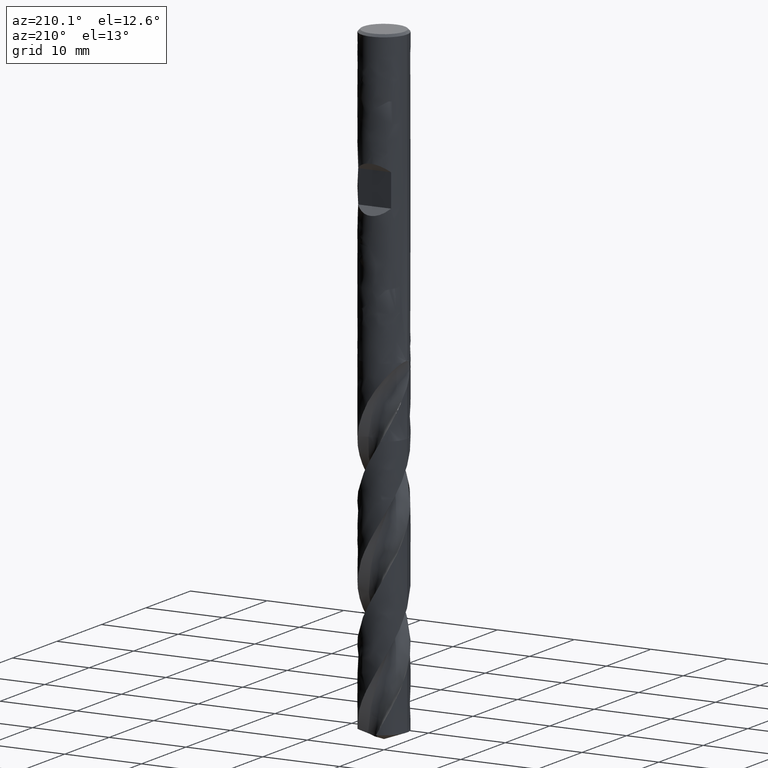
[diagram: clean part render]
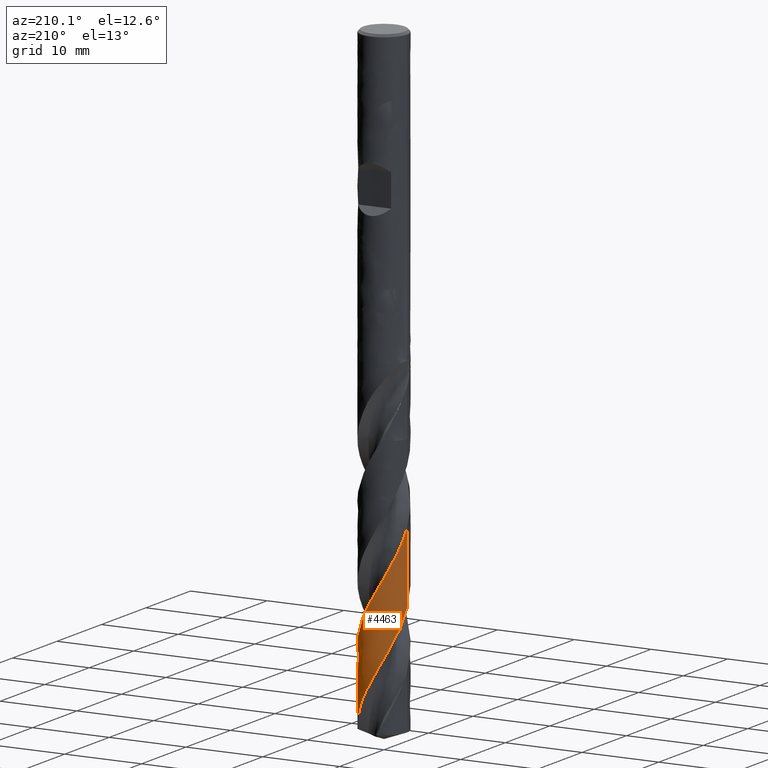
[diagram: same view with one face highlighted and labeled with its STEP entity id]
A machine part, auxiliary view. The second image highlights one B-rep face of the part: STEP entity #4463.
In plain terms, the highlighted face is a freeform B-spline surface patch.
Its self-contained STEP definition (entity closure, byte-faithful):
#1960 = VERTEX_POINT('', #1961);
#1961 = CARTESIAN_POINT('', (-3., 4.26020754489508E-15, -66.5744691099704));
#2082 = EDGE_CURVE('', #2083, #1960, #2085, .T.);
#2083 = VERTEX_POINT('', #2084);
#2084 = CARTESIAN_POINT('', (2.73960958333734, 1.22251352993995, -80.9080892972014));
#2085 = B_SPLINE_CURVE_WITH_KNOTS('', 3, (#2086, #2087, #2088, #2089, #2090, #2091, #2092, #2093, #2094, #2095, #2096, #2097, #2098, #2099, #2100, #2101, #2102, #2103, #2104, #2105, #2106, #2107, #2108, #2109, #2110, #2111, #2112, #2113, #2114, #2115, #2116, #2117, #2118, #2119, #2120, #2121, #2122, #2123, #2124, #2125, #2126, #2127, #2128, #2129, #2130, #2131, #2132, #2133, #2134, #2135, #2136, #2137, #2138, #2139, #2140, #2141, #2142, #2143, #2144, #2145, #2146, #2147, #2148, #2149, #2150, #2151, #2152, #2153, #2154, #2155, #2156, #2157, #2158, #2159, #2160, #2161, #2162, #2163, #2164, #2165, #2166, #2167, #2168, #2169, #2170), .UNSPECIFIED., .F., .U., (4, 3, 3, 3, 3, 3, 3, 3, 3, 3, 3, 3, 3, 3, 3, 3, 3, 3, 3, 3, 3, 3, 3, 3, 3, 3, 3, 3, 4), (0., 0.665718253699947, 1.33118446681703, 1.99640345409991, 2.66137848778931, 3.32611136859525, 3.99060241566731, 4.65485050421191, 5.31885303285901, 5.98260586578358, 6.64610323248585, 6.94133426738573, 6.98025186904817, 7.01918081919815, 7.6859352254579, 8.35239945581531, 9.01858618202882, 9.68450566736711, 10.3501660677568, 11.015573659672, 11.6807330088823, 12.345647089974, 13.0103173633935, 13.6747438142559, 14.3389249550699, 15.0028577926278, 15.6665377574488, 16.3299585921512, 16.4943967780624), .UNSPECIFIED.);
#2086 = CARTESIAN_POINT('', (2.73960958333733, 1.22251352993995, -80.9080892972014));
#2087 = CARTESIAN_POINT('', (2.69492373279667, 1.32265294057438, -80.7151707040929));
#2088 = CARTESIAN_POINT('', (2.64471975730666, 1.4203821209483, -80.5221856393616));
#2089 = CARTESIAN_POINT('', (2.5893338482533, 1.51504132692471, -80.3292754370136));
#2090 = CARTESIAN_POINT('', (2.53396890827615, 1.60966469497522, -80.1364382703673));
#2091 = CARTESIAN_POINT('', (2.47338508514048, 1.70129020515645, -79.9435349676991));
#2092 = CARTESIAN_POINT('', (2.40798888893388, 1.78929860860925, -79.750706314114));
#2093 = CARTESIAN_POINT('', (2.3426169879189, 1.87727431626092, -79.5579492978619));
#2094 = CARTESIAN_POINT('', (2.27238791089748, 1.96170070978893, -79.3651261730035));
#2095 = CARTESIAN_POINT('', (2.19777313055357, 2.04200716615217, -79.1723776697301));
#2096 = CARTESIAN_POINT('', (2.12318571344513, 2.12228417199011, -78.9796998524878));
#2097 = CARTESIAN_POINT('', (2.04416068857027, 2.19850359098855, -78.786955930269));
#2098 = CARTESIAN_POINT('', (1.96122867508954, 2.27015023379655, -78.5942866243876));
#2099 = CARTESIAN_POINT('', (1.87832686157901, 2.34177078623985, -78.4016874796785));
#2100 = CARTESIAN_POINT('', (1.79145977574088, 2.4088747091813, -78.2090222151951));
#2101 = CARTESIAN_POINT('', (1.70121066074969, 2.47100835444796, -78.0164315816548));
#2102 = CARTESIAN_POINT('', (1.61099437891763, 2.53311939512884, -77.8239110137203));
#2103 = CARTESIAN_POINT('', (1.51733221483639, 2.59030943789172, -77.6313242883388));
#2104 = CARTESIAN_POINT('', (1.42085287676902, 2.6421917232815, -77.4388122270317));
#2105 = CARTESIAN_POINT('', (1.32440881453871, 2.69405503889928, -77.2463705541026));
#2106 = CARTESIAN_POINT('', (1.2250790107514, 2.74065246785616, -77.053862677712));
#2107 = CARTESIAN_POINT('', (1.12352997705121, 2.78166863423152, -76.861429504957));
#2108 = CARTESIAN_POINT('', (1.02201848409932, 2.82266963770948, -76.6690674710897));
#2109 = CARTESIAN_POINT('', (0.918215359650358, 2.85812342029524, -76.4766391842581));
#2110 = CARTESIAN_POINT('', (0.81281683092567, 2.88778960441449, -76.2842856419888));
#2111 = CARTESIAN_POINT('', (0.707457936932247, 2.9174446326737, -76.0920044335655));
#2112 = CARTESIAN_POINT('', (0.600428298349293, 2.94133796719729, -75.8996569260558));
#2113 = CARTESIAN_POINT('', (0.492445451186149, 2.95930692521195, -75.707384198859));
#2114 = CARTESIAN_POINT('', (0.384504164629108, 2.97726896730612, -75.5151854738885));
#2115 = CARTESIAN_POINT('', (0.275532286146507, 2.98932419973188, -75.3229204123153));
#2116 = CARTESIAN_POINT('', (0.166260033166432, 2.99538939060876, -75.1307301566613));
#2117 = CARTESIAN_POINT('', (0.117638046174245, 2.99808816933692, -75.0452128194088));
#2118 = CARTESIAN_POINT('', (0.0689452198782487, 2.99960300952439, -74.9596901773799));
#2119 = CARTESIAN_POINT('', (0.020246656564971, 2.99993167803835, -74.8741744600837));
#2120 = CARTESIAN_POINT('', (0.0138271712652563, 2.99997500339644, -74.8629017067882));
#2121 = CARTESIAN_POINT('', (0.00740751627175737, 2.99999772349385, -74.8516289521009));
#2122 = CARTESIAN_POINT('', (0.000987838626305834, 2.99999983736248, -74.8403562252825));
#2123 = CARTESIAN_POINT('', (-0.00543371101609914, 3.00000195184752, -74.8290802113037));
#2124 = CARTESIAN_POINT('', (-0.0118552995318926, 2.99998344808904, -74.8178041967459));
#2125 = CARTESIAN_POINT('', (-0.0182767794724028, 2.99994432603876, -74.8065282107415));
#2126 = CARTESIAN_POINT('', (-0.12826048128169, 2.99927426431592, -74.6133991043992));
#2127 = CARTESIAN_POINT('', (-0.238255794849844, 2.99254646296856, -74.4202030606089));
#2128 = CARTESIAN_POINT('', (-0.347515987472609, 2.97980412753117, -74.2270824802488));
#2129 = CARTESIAN_POINT('', (-0.456728629341024, 2.96706733764195, -74.0340459472353));
#2130 = CARTESIAN_POINT('', (-0.565288121440559, 2.94831176423289, -73.8409425142161));
#2131 = CARTESIAN_POINT('', (-0.67245769830898, 2.92366219731097, -73.6479145092976));
#2132 = CARTESIAN_POINT('', (-0.779582651624736, 2.89902289404112, -73.4549668778917));
#2133 = CARTESIAN_POINT('', (-0.885398479766338, 2.86847619363919, -73.2619523510439));
#2134 = CARTESIAN_POINT('', (-0.989187307043416, 2.83222676909605, -73.0690132469038));
#2135 = CARTESIAN_POINT('', (-1.09293449942153, 2.79599188601338, -72.8761515403055));
#2136 = CARTESIAN_POINT('', (-1.194733226916, 2.75403199889918, -72.6832229199052));
#2137 = CARTESIAN_POINT('', (-1.29389314724867, 2.70662899627987, -72.490369737166));
#2138 = CARTESIAN_POINT('', (-1.39301448807821, 2.65924443643745, -72.2975915865561));
#2139 = CARTESIAN_POINT('', (-1.48957230962698, 2.60638599506861, -72.1047464895481));
#2140 = CARTESIAN_POINT('', (-1.58291206855566, 2.5484091867714, -71.9119768571505));
#2141 = CARTESIAN_POINT('', (-1.67621637835435, 2.49045439725202, -71.719280435953));
#2142 = CARTESIAN_POINT('', (-1.76637375535139, 2.427342474421, -71.5265170290619));
#2143 = CARTESIAN_POINT('', (-1.8527732496832, 2.35949810028708, -71.333829118504));
#2144 = CARTESIAN_POINT('', (-1.93914051107323, 2.29167903676151, -71.1412130937626));
#2145 = CARTESIAN_POINT('', (-2.02181603843679, 2.21908132137823, -70.9485300438147));
#2146 = CARTESIAN_POINT('', (-2.10023971293051, 2.14219353659504, -70.7559225205071));
#2147 = CARTESIAN_POINT('', (-2.17863446980155, 2.0653341030969, -70.5633860185042));
#2148 = CARTESIAN_POINT('', (-2.25283780593122, 1.98413159848875, -70.370782457074));
#2149 = CARTESIAN_POINT('', (-2.32234703536577, 1.89913249862348, -70.1782544459392));
#2150 = CARTESIAN_POINT('', (-2.39183077747208, 1.81416456584171, -69.9857970301002));
#2151 = CARTESIAN_POINT('', (-2.45667448057185, 1.72534092289681, -69.7932725305179));
#2152 = CARTESIAN_POINT('', (-2.51643878682484, 1.63325926667004, -69.6008235938767));
#2153 = CARTESIAN_POINT('', (-2.57618116959704, 1.54121138897342, -69.4084452537307));
#2154 = CARTESIAN_POINT('', (-2.63089129703321, 1.44584100260547, -69.2159998192118));
#2155 = CARTESIAN_POINT('', (-2.68019826507455, 1.34778976843253, -69.0236299457264));
#2156 = CARTESIAN_POINT('', (-2.72948702870108, 1.24977473533644, -68.8313310962992));
#2157 = CARTESIAN_POINT('', (-2.77341237114686, 1.14900974739939, -68.6389651585678));
#2158 = CARTESIAN_POINT('', (-2.81167614371217, 1.0461726735487, -68.4466747626179));
#2159 = CARTESIAN_POINT('', (-2.84992561141585, 0.943374045204371, -68.2544562541826));
#2160 = CARTESIAN_POINT('', (-2.88254545011789, 0.838430409929519, -68.0621706825098));
#2161 = CARTESIAN_POINT('', (-2.90931369809898, 0.732047680178155, -67.8699606139263));
#2162 = CARTESIAN_POINT('', (-2.93607175083178, 0.625705468519153, -67.6778237525761));
#2163 = CARTESIAN_POINT('', (-2.95700204423757, 0.517848247608757, -67.4856198736976));
#2164 = CARTESIAN_POINT('', (-2.9719613283196, 0.409201494345428, -67.2934914383186));
#2165 = CARTESIAN_POINT('', (-2.98691477163309, 0.300597161597333, -67.1014380184093));
#2166 = CARTESIAN_POINT('', (-2.9959126966446, 0.19112522512752, -66.9093176483662));
#2167 = CARTESIAN_POINT('', (-2.99889215522249, 0.0815220298139735, -66.7172726404615));
#2168 = CARTESIAN_POINT('', (-2.99963065594167, 0.054355336118697, -66.6696715838451));
#2169 = CARTESIAN_POINT('', (-3., 0.0271775667754056, -66.6220696885888));
#2170 = CARTESIAN_POINT('', (-3., 4.12534465309915E-15, -66.5744691099704));
#2427 = VERTEX_POINT('', #2428);
#2428 = CARTESIAN_POINT('', (-3., 3.68936415163167E-15, -57.2518890213953));
#2483 = EDGE_CURVE('', #2427, #1960, #2484, .T.);
#2484 = LINE('', #2485, #2486);
#2485 = CARTESIAN_POINT('', (-3., 3.68936415163167E-15, -57.2518890213953));
#2486 = VECTOR('', #2487, 9.32258008857514);
#2487 = DIRECTION('', (0., 5.70843393263419E-16, -9.32258008857514));
#2581 = VERTEX_POINT('', #2582);
#2582 = CARTESIAN_POINT('', (0.651846533794723, -2.92832650098649, -80.9080892972014));
#2691 = EDGE_CURVE('', #2692, #2581, #2694, .T.);
#2692 = VERTEX_POINT('', #2693);
#2693 = CARTESIAN_POINT('', (1.1436609316249, -2.77345266292303, -79.9964470738604));
#2694 = B_SPLINE_CURVE_WITH_KNOTS('', 3, (#2695, #2696, #2697, #2698, #2699, #2700, #2701), .UNSPECIFIED., .F., .U., (4, 3, 4), (0., 0.664031708177451, 1.04757633619898), .UNSPECIFIED.);
#2695 = CARTESIAN_POINT('', (1.14366093162495, -2.77345266292301, -79.9964470738603));
#2696 = CARTESIAN_POINT('', (1.04281438226776, -2.8150377457084, -80.1890445236003));
#2697 = CARTESIAN_POINT('', (0.939668681754847, -2.85112585788506, -80.3817166546056));
#2698 = CARTESIAN_POINT('', (0.834909332831994, -2.8814798985848, -80.5743230779158));
#2699 = CARTESIAN_POINT('', (0.774400346559826, -2.89901238853334, -80.6855725228946));
#2700 = CARTESIAN_POINT('', (0.713334375882049, -2.9146392851922, -80.7968370161874));
#2701 = CARTESIAN_POINT('', (0.651846533794711, -2.92832650098649, -80.9080892972014));
#4257 = EDGE_CURVE('', #2083, #2581, #4258, .T.);
#4258 = CIRCLE('', #4259, 3.);
#4259 = AXIS2_PLACEMENT_3D('', #4260, #4261, #4262);
#4260 = CARTESIAN_POINT('', (3.03356746049892E-31, 4.9541916291473E-15, -80.9080892972014));
#4261 = DIRECTION('', (3.74939945665464E-33, 6.12323399573677E-17, -1.));
#4262 = DIRECTION('', (-1., 6.12323399573677E-17, 0.));
#4463 = ADVANCED_FACE('', (#4464), #4609, .T.);
#4464 = FACE_OUTER_BOUND('', #4465, .T.);
#4465 = EDGE_LOOP('', (#4466, #4467, #4468, #4469, #4470));
#4466 = ORIENTED_EDGE('', *, *, #2691, .T.);
#4467 = ORIENTED_EDGE('', *, *, #4257, .F.);
#4468 = ORIENTED_EDGE('', *, *, #2082, .T.);
#4469 = ORIENTED_EDGE('', *, *, #2483, .F.);
#4470 = ORIENTED_EDGE('', *, *, #4471, .F.);
#4471 = EDGE_CURVE('', #2692, #2427, #4472, .T.);
#4472 = B_SPLINE_CURVE_WITH_KNOTS('', 3, (#4473, #4474, #4475, #4476, #4477, #4478, #4479, #4480, #4481, #4482, #4483, #4484, #4485, #4486, #4487, #4488, #4489, #4490, #4491, #4492, #4493, #4494, #4495, #4496, #4497, #4498, #4499, #4500, #4501, #4502, #4503, #4504, #4505, #4506, #4507, #4508, #4509, #4510, #4511, #4512, #4513, #4514, #4515, #4516, #4517, #4518, #4519, #4520, #4521, #4522, #4523, #4524, #4525, #4526, #4527, #4528, #4529, #4530, #4531, #4532, #4533, #4534, #4535, #4536, #4537, #4538, #4539, #4540, #4541, #4542, #4543, #4544, #4545, #4546, #4547, #4548, #4549, #4550, #4551, #4552, #4553, #4554, #4555, #4556, #4557, #4558, #4559, #4560, #4561, #4562, #4563, #4564, #4565, #4566, #4567, #4568, #4569, #4570, #4571, #4572, #4573, #4574, #4575, #4576, #4577, #4578, #4579, #4580, #4581, #4582, #4583, #4584, #4585, #4586, #4587, #4588, #4589, #4590, #4591, #4592, #4593, #4594, #4595, #4596, #4597, #4598, #4599, #4600, #4601, #4602, #4603, #4604, #4605, #4606, #4607, #4608), .UNSPECIFIED., .F., .U., (4, 3, 3, 3, 3, 3, 3, 3, 3, 3, 3, 3, 3, 3, 3, 3, 3, 3, 3, 3, 3, 3, 3, 3, 3, 3, 3, 3, 3, 3, 3, 3, 3, 3, 3, 3, 3, 3, 3, 3, 3, 3, 3, 3, 3, 4), (0., 0.665780280075021, 1.33130960936678, 1.99659309999321, 2.6616342496796, 3.32643506237463, 3.99099608567714, 4.65531642706631, 5.31939371376931, 5.98322407228095, 6.64680204107318, 7.08941510765467, 7.14778695724863, 7.20616898465008, 7.87291703263534, 8.53937700301148, 9.20556127112482, 9.87147983812413, 10.5371406252295, 11.2025496961436, 11.8677114213539, 12.5326285939725, 13.1973025036561, 13.8617329726958, 14.5259183562966, 15.1898555071921, 15.8535397028828, 16.5169645317812, 16.6482620929337, 16.6871796578717, 16.7261081347628, 17.3928724494436, 18.0593447078901, 18.7255375120994, 19.3914610392141, 20.05712334288, 20.7225305807945, 21.3876871826038, 22.052595968066, 22.7172582221994, 23.3816737315952, 24.0458407839424, 24.7097561308711, 25.3734149122982, 26.0368105383762, 26.1765736561718), .UNSPECIFIED.);
#4473 = CARTESIAN_POINT('', (1.1436609316249, -2.77345266292303, -79.9964470738604));
#4474 = CARTESIAN_POINT('', (1.24477303673795, -2.73175807556697, -79.8033424638687));
#4475 = CARTESIAN_POINT('', (1.3436497776149, -2.68450614986667, -79.6101747848034));
#4476 = CARTESIAN_POINT('', (1.43962888440825, -2.63200848691213, -79.4170854447075));
#4477 = CARTESIAN_POINT('', (1.53557181405315, -2.57953061176151, -79.2240688852611));
#4478 = CARTESIAN_POINT('', (1.62868676932919, -2.52177403112072, -79.0309892896951));
#4479 = CARTESIAN_POINT('', (1.71834957905626, -2.45912072175344, -78.8379879717542));
#4480 = CARTESIAN_POINT('', (1.80797926840155, -2.39649055577786, -78.6450579462183));
#4481 = CARTESIAN_POINT('', (1.89422254431619, -2.32892310617028, -78.4520649468983));
#4482 = CARTESIAN_POINT('', (1.97650065613918, -2.25686622471988, -78.2591501164522));
#4483 = CARTESIAN_POINT('', (2.05874879674653, -2.18483559122638, -78.066305558547));
#4484 = CARTESIAN_POINT('', (2.13709291471745, -2.10826774514858, -77.873398146977));
#4485 = CARTESIAN_POINT('', (2.21100644040735, -2.02767120620608, -77.680568738071));
#4486 = CARTESIAN_POINT('', (2.28489325473601, -1.94710379377656, -77.4878090151386));
#4487 = CARTESIAN_POINT('', (2.35440539356008, -1.86245306914611, -77.2949866172341));
#4488 = CARTESIAN_POINT('', (2.4190746569495, -1.7742823349469, -77.1022419984619));
#4489 = CARTESIAN_POINT('', (2.48372059455008, -1.68614340336645, -76.9095669014383));
#4490 = CARTESIAN_POINT('', (2.54357371676582, -1.59442344529579, -76.7168293569725));
#4491 = CARTESIAN_POINT('', (2.59822976952095, -1.49973399800602, -76.5241693300063));
#4492 = CARTESIAN_POINT('', (2.65286602767048, -1.40507884408668, -76.331579078098));
#4493 = CARTESIAN_POINT('', (2.70234874572362, -1.30738738769881, -76.1389266016337));
#4494 = CARTESIAN_POINT('', (2.74634257681699, -1.20731207678974, -75.9463514241826));
#4495 = CARTESIAN_POINT('', (2.79032031190043, -1.10727338040498, -75.7538467041544));
#4496 = CARTESIAN_POINT('', (2.82884543202062, -1.00477913426049, -75.5612799062813));
#4497 = CARTESIAN_POINT('', (2.86165569016516, -0.90051469224319, -75.3687902642695));
#4498 = CARTESIAN_POINT('', (2.8944537482573, -0.796289019553808, -75.1763721969374));
#4499 = CARTESIAN_POINT('', (2.92156535791987, -0.690217621423855, -74.9838921295436));
#4500 = CARTESIAN_POINT('', (2.94280460389596, -0.583010345783299, -74.7914891394991));
#4501 = CARTESIAN_POINT('', (2.96403577466538, -0.475843830577801, -74.5991593014822));
#4502 = CARTESIAN_POINT('', (2.97941471618364, -0.367463156213049, -74.4067674858717));
#4503 = CARTESIAN_POINT('', (2.9888340793877, -0.2585939788369, -74.2144527204495));
#4504 = CARTESIAN_POINT('', (2.99511688778258, -0.185977161038736, -74.0861768703223));
#4505 = CARTESIAN_POINT('', (2.99875305039551, -0.113113138995295, -73.9578838354198));
#4506 = CARTESIAN_POINT('', (2.99973038667569, -0.0402194884954666, -73.8296148595726));
#4507 = CARTESIAN_POINT('', (2.99985927786906, -0.0306062675478941, -73.8126987359173));
#4508 = CARTESIAN_POINT('', (2.99994195898127, -0.0209923057675264, -73.7957826180388));
#4509 = CARTESIAN_POINT('', (2.99997842303794, -0.0113781064669359, -73.7788665986599));
#4510 = CARTESIAN_POINT('', (3.00001489345255, -0.00176223081943621, -73.7619476297772));
#4511 = CARTESIAN_POINT('', (3.00000513094289, 0.00785393837384783, -73.7450286648982));
#4512 = CARTESIAN_POINT('', (2.99994913328055, 0.0174699092513913, -73.7281098035017));
#4513 = CARTESIAN_POINT('', (2.99930961571467, 0.12728846296483, -73.5348890759529));
#4514 = CARTESIAN_POINT('', (2.99263053919738, 0.237126217152316, -73.3416052539826));
#4515 = CARTESIAN_POINT('', (2.97995274473557, 0.346239280186061, -73.1483996995079));
#4516 = CARTESIAN_POINT('', (2.96728042788818, 0.455305199429258, -72.9552776221342));
#4517 = CARTESIAN_POINT('', (2.94860511142782, 0.563728409183809, -72.7620925059559));
#4518 = CARTESIAN_POINT('', (2.92404888663946, 0.670774260495209, -72.5689856011986));
#4519 = CARTESIAN_POINT('', (2.89950282031079, 0.777775828901794, -72.3759585812252));
#4520 = CARTESIAN_POINT('', (2.86906239378458, 0.883481002138226, -72.1828685184274));
#4521 = CARTESIAN_POINT('', (2.83292936073397, 0.987173357162551, -71.9898566667561));
#4522 = CARTESIAN_POINT('', (2.79681073899206, 1.0908243554999, -71.796921795984));
#4523 = CARTESIAN_POINT('', (2.75497715640778, 1.19254132076649, -71.6039238332338));
#4524 = CARTESIAN_POINT('', (2.70770745332852, 1.29163475765762, -71.4110041230209));
#4525 = CARTESIAN_POINT('', (2.66045604855126, 1.39068983506019, -71.2181590928438));
#4526 = CARTESIAN_POINT('', (2.60773766750184, 1.4871969284517, -71.0252508893283));
#4527 = CARTESIAN_POINT('', (2.54990472272259, 1.58050178900154, -70.8324210089348));
#4528 = CARTESIAN_POINT('', (2.49209364717294, 1.6737713667999, -70.6396640461654));
#4529 = CARTESIAN_POINT('', (2.42912916116, 1.76391005667599, -70.4468438079877));
#4530 = CARTESIAN_POINT('', (2.36143285390421, 1.85030669795627, -70.2541019815608));
#4531 = CARTESIAN_POINT('', (2.29376171070386, 1.93667122389733, -70.0614318010804));
#4532 = CARTESIAN_POINT('', (2.22131250660741, 2.01935999497189, -69.8686982326));
#4533 = CARTESIAN_POINT('', (2.14457079632668, 2.0978122174167, -69.6760431726973));
#4534 = CARTESIAN_POINT('', (2.06785730081454, 2.176235596208, -69.4834589441316));
#4535 = CARTESIAN_POINT('', (1.9867983323642, 2.2504829237625, -69.2908112134333));
#4536 = CARTESIAN_POINT('', (1.90193745636116, 2.32005041154076, -69.0982420876752));
#4537 = CARTESIAN_POINT('', (1.81710762709088, 2.38959244774105, -68.905743414197));
#4538 = CARTESIAN_POINT('', (1.72841691281692, 2.45450870380107, -68.7131811307795));
#4539 = CARTESIAN_POINT('', (1.63646026895561, 2.51435832532472, -68.5206975406295));
#4540 = CARTESIAN_POINT('', (1.54453730474424, 2.57418602658012, -68.3282844487019));
#4541 = CARTESIAN_POINT('', (1.44928417530057, 2.62899417279592, -68.1358076521864));
#4542 = CARTESIAN_POINT('', (1.35134002233879, 2.67841000297294, -67.9434096226732));
#4543 = CARTESIAN_POINT('', (1.25343199759031, 2.72780760535789, -67.7510825621443));
#4544 = CARTESIAN_POINT('', (1.15276423231832, 2.77185254193193, -67.5586917214084));
#4545 = CARTESIAN_POINT('', (1.05001235460016, 2.81024448316999, -67.3663797012001));
#4546 = CARTESIAN_POINT('', (0.947298879378041, 2.84862207580046, -67.1741395557036));
#4547 = CARTESIAN_POINT('', (0.842428885311834, 2.88137853195735, -66.9818355783884));
#4548 = CARTESIAN_POINT('', (0.736106381029802, 2.90828942779226, -66.7896104501731));
#4549 = CARTESIAN_POINT('', (0.629824384845297, 2.93519007077241, -66.5974585583277));
#4550 = CARTESIAN_POINT('', (0.522014582860034, 2.95626893979979, -66.4052428112067));
#4551 = CARTESIAN_POINT('', (0.413400945654289, 2.97138009317761, -66.2131059128711));
#4552 = CARTESIAN_POINT('', (0.304829754495706, 2.98648534113926, -66.0210441013483));
#4553 = CARTESIAN_POINT('', (0.195377346808289, 2.99563838175084, -65.8289184426243));
#4554 = CARTESIAN_POINT('', (0.0857790189591584, 2.99877340923025, -65.636871600301));
#4555 = CARTESIAN_POINT('', (0.064088553775828, 2.99939385851744, -65.5988638548478));
#4556 = CARTESIAN_POINT('', (0.0423905352770598, 2.99977898280718, -65.5608558492128));
#4557 = CARTESIAN_POINT('', (0.0206907478801655, 2.99992864797684, -65.5228486554347));
#4558 = CARTESIAN_POINT('', (0.0142587709435956, 2.99997300983634, -65.5115830430426));
#4559 = CARTESIAN_POINT('', (0.00782660284223825, 2.99999668627246, -65.5003174393455));
#4560 = CARTESIAN_POINT('', (0.00139439102533585, 2.9999996759456, -65.4890518741107));
#4561 = CARTESIAN_POINT('', (-0.00503962429580031, 3.00000266645699, -65.4777831501654));
#4562 = CARTESIAN_POINT('', (-0.0114736997237382, 2.99998495861003, -65.4665144360356));
#4563 = CARTESIAN_POINT('', (-0.017907687341302, 2.99994655197957, -65.4552457613257));
#4564 = CARTESIAN_POINT('', (-0.128108591334905, 2.99928872581525, -65.2622366643768));
#4565 = CARTESIAN_POINT('', (-0.238328064731242, 2.99254912071547, -65.0691634831911));
#4566 = CARTESIAN_POINT('', (-0.347814062861687, 2.97976934974446, -64.8761695010346));
#4567 = CARTESIAN_POINT('', (-0.457252103914023, 2.96699517657121, -64.6832600541396));
#4568 = CARTESIAN_POINT('', (-0.566039841762264, 2.94817648627471, -64.4902865585553));
#4569 = CARTESIAN_POINT('', (-0.673434763048155, 2.92343729536289, -64.2973922290741));
#4570 = CARTESIAN_POINT('', (-0.780784653253727, 2.89870847768361, -64.1045787808855));
#4571 = CARTESIAN_POINT('', (-0.886823796675195, 2.86804548365354, -63.9117012729593));
#4572 = CARTESIAN_POINT('', (-0.99082830158476, 2.83165309965378, -63.7189029417977));
#4573 = CARTESIAN_POINT('', (-1.09479076756695, 2.79527542556288, -63.5261825402897));
#4574 = CARTESIAN_POINT('', (-1.19679842360505, 2.75314563510252, -63.3333980334505));
#4575 = CARTESIAN_POINT('', (-1.29615481209211, 2.705546655131, -63.1406927459381));
#4576 = CARTESIAN_POINT('', (-1.39547222580593, 2.65796634692764, -62.9480630513996));
#4577 = CARTESIAN_POINT('', (-1.49221490816087, 2.60488547210446, -62.7553691820508));
#4578 = CARTESIAN_POINT('', (-1.58572226714141, 2.54666151883048, -62.562754596167));
#4579 = CARTESIAN_POINT('', (-1.67919379635566, 2.48845987557211, -62.3702138155503));
#4580 = CARTESIAN_POINT('', (-1.76950228927789, 2.42507563207868, -62.1776087761636));
#4581 = CARTESIAN_POINT('', (-1.85603097370078, 2.35693636415228, -61.9850830968618));
#4582 = CARTESIAN_POINT('', (-1.94252706573329, 2.2888227619532, -61.7926299353862));
#4583 = CARTESIAN_POINT('', (-2.02531052848631, 2.2159070623164, -61.6001124249618));
#4584 = CARTESIAN_POINT('', (-2.10381579777197, 2.13868162404906, -61.4076743557494));
#4585 = CARTESIAN_POINT('', (-2.18229181847315, 2.06148495754156, -61.2153079828853));
#4586 = CARTESIAN_POINT('', (-2.25655095726668, 1.97992459215632, -61.0228771718916));
#4587 = CARTESIAN_POINT('', (-2.32608559935828, 1.89455160511876, -60.8305258807928));
#4588 = CARTESIAN_POINT('', (-2.3955944597666, 1.80921027222143, -60.6382459086787));
#4589 = CARTESIAN_POINT('', (-2.4604336055053, 1.71999618976122, -60.44590141651));
#4590 = CARTESIAN_POINT('', (-2.52015939316429, 1.62751240641839, -60.2536365144626));
#4591 = CARTESIAN_POINT('', (-2.57986300862424, 1.53506295613226, -60.0614429875422));
#4592 = CARTESIAN_POINT('', (-2.63450095213014, 1.43927827171217, -59.8691848712742));
#4593 = CARTESIAN_POINT('', (-2.68369879030896, 1.34080602731875, -59.6770064017467));
#4594 = CARTESIAN_POINT('', (-2.73287823103995, 1.24237060645347, -59.4848997970306));
#4595 = CARTESIAN_POINT('', (-2.77665768246659, 1.14117748125739, -59.2927285508692));
#4596 = CARTESIAN_POINT('', (-2.81473632146694, 1.03791109475479, -59.1006369901028));
#4597 = CARTESIAN_POINT('', (-2.8528005294597, 0.934683844052335, -58.9086182280195));
#4598 = CARTESIAN_POINT('', (-2.88519608526945, 0.829309393768989, -58.716534793404));
#4599 = CARTESIAN_POINT('', (-2.9116992917778, 0.722500681149639, -58.5245310612447));
#4600 = CARTESIAN_POINT('', (-2.938192256305, 0.615733244019801, -58.332601527602));
#4601 = CARTESIAN_POINT('', (-2.95881677524968, 0.507454645170864, -58.1406073144808));
#4602 = CARTESIAN_POINT('', (-2.97342887203966, 0.3983977195228, -57.9486927963207));
#4603 = CARTESIAN_POINT('', (-2.98803517481087, 0.289384037351876, -57.7568543765013));
#4604 = CARTESIAN_POINT('', (-2.99664448364294, 0.179513010272466, -57.5649512968972));
#4605 = CARTESIAN_POINT('', (-2.9991941885364, 0.0695285513261143, -57.3731278778495));
#4606 = CARTESIAN_POINT('', (-2.99973135624049, 0.0463572033594702, -57.3327148301018));
#4607 = CARTESIAN_POINT('', (-3., 0.0231786719775425, -57.2923014391571));
#4608 = CARTESIAN_POINT('', (-3., 3.10525806625986E-15, -57.2518890213953));
#4609 = (
   BOUNDED_SURFACE ()
   B_SPLINE_SURFACE (2, 1, ((#4610, #4611), (#4612, #4613), (#4614, #4615), (#4616, #4617), (#4618, #4619), (#4620, #4621), (#4622, #4623)), .UNSPECIFIED., .F., .F., .U.)
   B_SPLINE_SURFACE_WITH_KNOTS ((3, 2, 2, 3), (2, 2), (0., 4.71238898038469, 9.42477796076938, 13.4363141886091), (0.44867737847863, 1.), .UNSPECIFIED.)
   GEOMETRIC_REPRESENTATION_ITEM ()
   RATIONAL_B_SPLINE_SURFACE (((1., 1.), (0.707106781186548, 0.707106781186548), (1., 1.), (0.707106781186548, 0.707106781186548), (1., 1.), (0.750667493059364, 0.750667493059364), (0.925835759944408, 0.925835759944408)))
   REPRESENTATION_ITEM ('')
   SURFACE ()
);
#4610 = CARTESIAN_POINT('', (-3., 3.68936415163167E-15, -57.2518890213953));
#4611 = CARTESIAN_POINT('', (-3., 5.1378886490194E-15, -80.9080892972014));
#4612 = CARTESIAN_POINT('', (-3., 3., -57.2518890213953));
#4613 = CARTESIAN_POINT('', (-3., 3.00000000000001, -80.9080892972014));
#4614 = CARTESIAN_POINT('', (2.2186712959341E-31, 3., -57.2518890213953));
#4615 = CARTESIAN_POINT('', (3.20474742746036E-31, 3., -80.9080892972014));
#4616 = CARTESIAN_POINT('', (3., 3., -57.2518890213953));
#4617 = CARTESIAN_POINT('', (3., 3.00000000000001, -80.9080892972014));
#4618 = CARTESIAN_POINT('', (3., 3.68936415163167E-15, -57.2518890213953));
#4619 = CARTESIAN_POINT('', (3., 5.1378886490194E-15, -80.9080892972014));
#4620 = CARTESIAN_POINT('', (3., -2.40562669369099, -57.2518890213953));
#4621 = CARTESIAN_POINT('', (3., -2.40562669369099, -80.9080892972014));
#4622 = CARTESIAN_POINT('', (0.651846533794711, -2.92832650098649, -57.2518890213953));
#4623 = CARTESIAN_POINT('', (0.651846533794711, -2.92832650098649, -80.9080892972014));